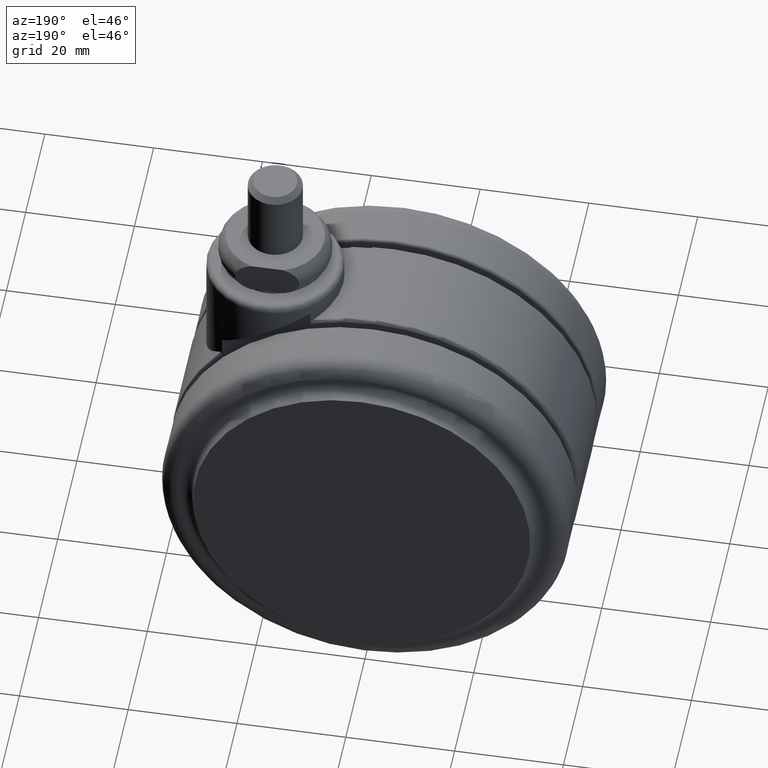
[diagram: clean part render]
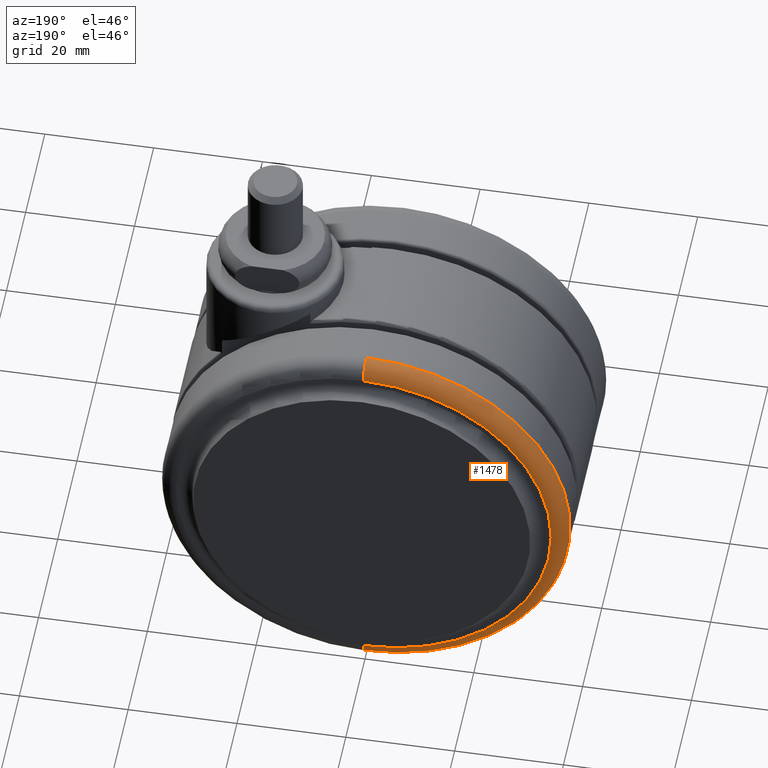
[diagram: same view with one face highlighted and labeled with its STEP entity id]
A machine part, auxiliary view. The second image highlights one B-rep face of the part: STEP entity #1478.
In plain terms, the highlighted toroidal blend (fillet) surface has major radius 34.5 mm and minor (blend) radius 3 mm.
Its self-contained STEP definition (entity closure, byte-faithful):
#20 = ORIENTED_EDGE ( 'NONE', *, *, #3094, .T. ) ;
#46 = TOROIDAL_SURFACE ( 'NONE', #1508, 34.50000000000000000, 3.000000000000000000 ) ;
#60 = DIRECTION ( 'NONE',  ( 1.000000000000000000, -1.582413479254075000E-015, 0.0000000000000000000 ) ) ;
#69 = CARTESIAN_POINT ( 'NONE',  ( -20.00000000000000000, 18.50000000000000000, -75.00000000000001400 ) ) ;
#93 = VERTEX_POINT ( 'NONE', #2463 ) ;
#112 = DIRECTION ( 'NONE',  ( 0.0000000000000000000, 0.0000000000000000000, -1.000000000000000000 ) ) ;
#141 = FACE_OUTER_BOUND ( 'NONE', #3054, .T. ) ;
#368 = DIRECTION ( 'NONE',  ( 1.156482317317871700E-015, 1.000000000000000000, 0.0000000000000000000 ) ) ;
#457 = AXIS2_PLACEMENT_3D ( 'NONE', #901, #953, #2915 ) ;
#901 = CARTESIAN_POINT ( 'NONE',  ( -20.00000000000000000, 21.50000000000000000, -40.50000000000000000 ) ) ;
#953 = DIRECTION ( 'NONE',  ( -1.582413479254075000E-015, -1.000000000000000000, 0.0000000000000000000 ) ) ;
#978 = AXIS2_PLACEMENT_3D ( 'NONE', #2860, #1024, #3157 ) ;
#1024 = DIRECTION ( 'NONE',  ( -1.000000000000000000, 1.582413479254075000E-015, -1.224646799147353200E-016 ) ) ;
#1032 = VERTEX_POINT ( 'NONE', #3834 ) ;
#1114 = VERTEX_POINT ( 'NONE', #2294 ) ;
#1140 = CIRCLE ( 'NONE', #3598, 37.50000000000000000 ) ;
#1252 = DIRECTION ( 'NONE',  ( 1.582413479254075000E-015, 1.000000000000000000, 0.0000000000000000000 ) ) ;
#1259 = ORIENTED_EDGE ( 'NONE', *, *, #1315, .F. ) ;
#1315 = EDGE_CURVE ( 'NONE', #93, #1114, #3047, .T. ) ;
#1478 = ADVANCED_FACE ( 'NONE', ( #141 ), #46, .T. ) ;
#1508 = AXIS2_PLACEMENT_3D ( 'NONE', #1625, #1252, #112 ) ;
#1625 = CARTESIAN_POINT ( 'NONE',  ( -20.00000000000000000, 18.50000000000000000, -40.50000000000000000 ) ) ;
#1646 = ORIENTED_EDGE ( 'NONE', *, *, #1955, .F. ) ;
#1955 = EDGE_CURVE ( 'NONE', #3792, #93, #1140, .T. ) ;
#1987 = AXIS2_PLACEMENT_3D ( 'NONE', #69, #60, #368 ) ;
#2004 = EDGE_CURVE ( 'NONE', #1032, #1114, #3466, .T. ) ;
#2116 = CARTESIAN_POINT ( 'NONE',  ( -20.00000000000000400, 18.50000000000000000, -3.000000000000000400 ) ) ;
#2210 = CARTESIAN_POINT ( 'NONE',  ( -20.00000000000000000, 18.50000000000000000, -40.50000000000000000 ) ) ;
#2221 = DIRECTION ( 'NONE',  ( -1.582413479254075000E-015, -1.000000000000000000, 0.0000000000000000000 ) ) ;
#2294 = CARTESIAN_POINT ( 'NONE',  ( -20.00000000000000000, 21.50000000000000000, -75.00000000000001400 ) ) ;
#2463 = CARTESIAN_POINT ( 'NONE',  ( -20.00000000000000000, 18.50000000000000000, -78.00000000000001400 ) ) ;
#2860 = CARTESIAN_POINT ( 'NONE',  ( -20.00000000000000400, 18.50000000000000000, -5.999999999999998200 ) ) ;
#2915 = DIRECTION ( 'NONE',  ( 0.0000000000000000000, 0.0000000000000000000, -1.000000000000000000 ) ) ;
#2982 = DIRECTION ( 'NONE',  ( 0.0000000000000000000, 0.0000000000000000000, -1.000000000000000000 ) ) ;
#3047 = CIRCLE ( 'NONE', #1987, 2.999999999999999100 ) ;
#3054 = EDGE_LOOP ( 'NONE', ( #1646, #20, #3591, #1259 ) ) ;
#3077 = CIRCLE ( 'NONE', #978, 2.999999999999999100 ) ;
#3094 = EDGE_CURVE ( 'NONE', #3792, #1032, #3077, .T. ) ;
#3157 = DIRECTION ( 'NONE',  ( -1.156482317317871700E-015, -1.000000000000000000, 0.0000000000000000000 ) ) ;
#3466 = CIRCLE ( 'NONE', #457, 34.50000000000000700 ) ;
#3591 = ORIENTED_EDGE ( 'NONE', *, *, #2004, .T. ) ;
#3598 = AXIS2_PLACEMENT_3D ( 'NONE', #2210, #2221, #2982 ) ;
#3792 = VERTEX_POINT ( 'NONE', #2116 ) ;
#3834 = CARTESIAN_POINT ( 'NONE',  ( -20.00000000000000400, 21.50000000000000000, -5.999999999999998200 ) ) ;